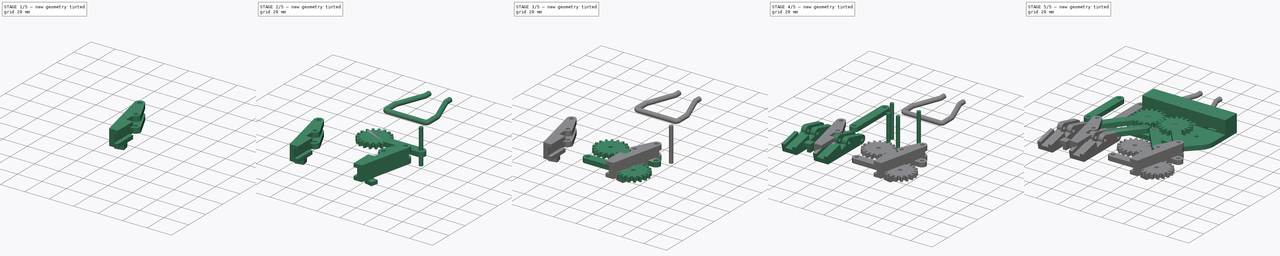
[diagram: build sequence overview — one tinted view per stage of 5, left to right]
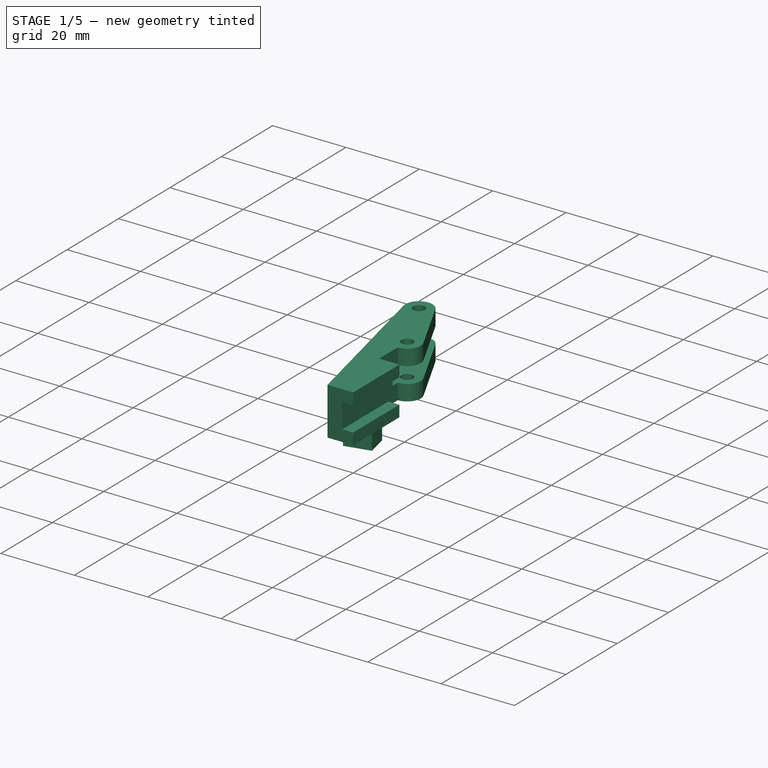
[diagram: stage 1 of 5 — iso view after this stage's code; geometry added in this stage tinted green]
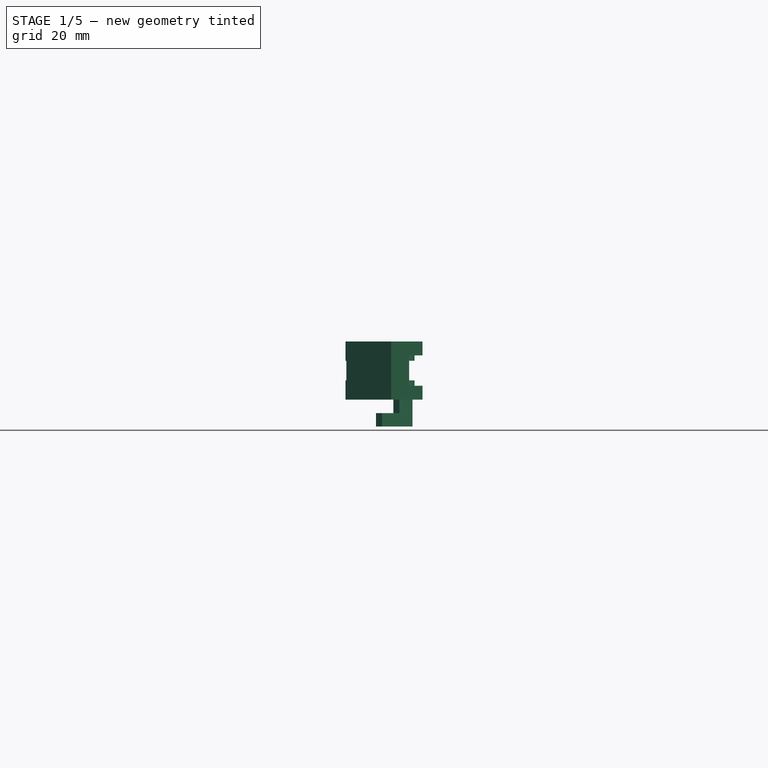
[diagram: stage 1 of 5 — front view after this stage's code; geometry added in this stage tinted green]
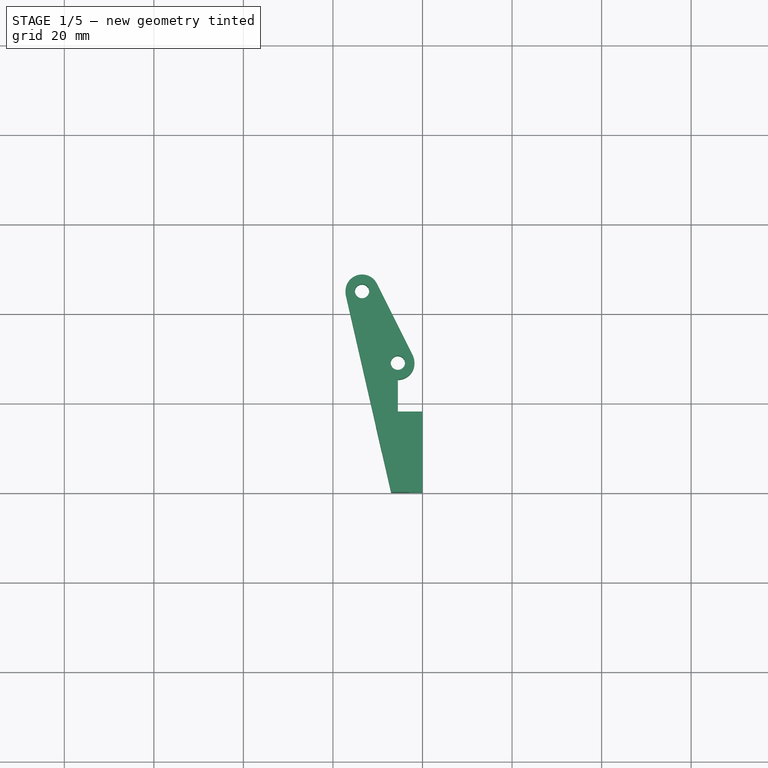
[diagram: stage 1 of 5 — top view after this stage's code; geometry added in this stage tinted green]
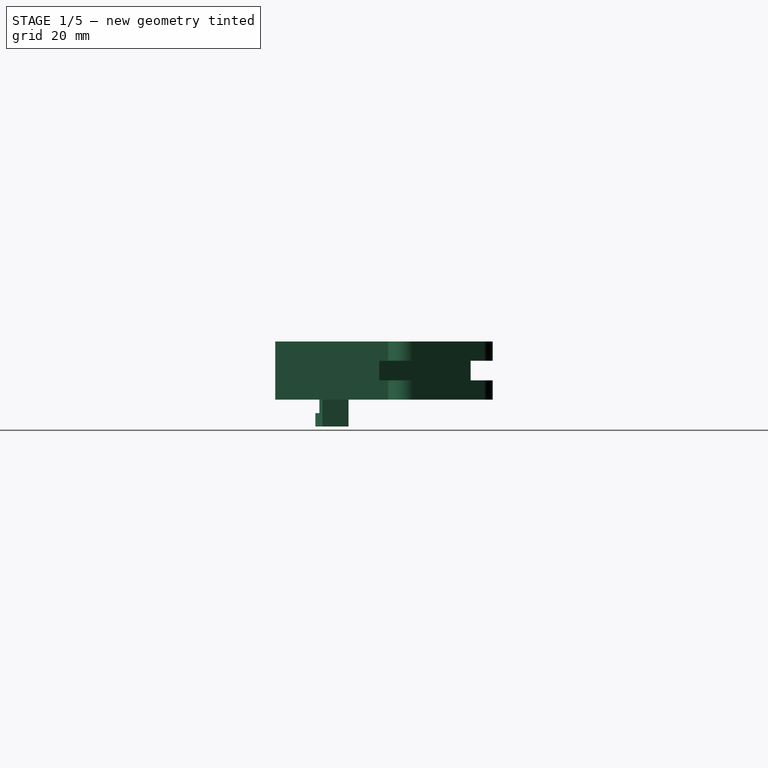
[diagram: stage 1 of 5 — right view after this stage's code; geometry added in this stage tinted green]
FCSTD DOCUMENT  (FreeCAD 0.16R6226 (Git))
Label: bq-id-card-holder-robot-claw-2
License: All rights reserved
LicenseURL: http://en.wikipedia.org/wiki/All_rights_reserved
objects: Part::Part2DObjectPython×39, Part::FeaturePython×32, Part::Feature×17, App::Annotation×15, Sketcher::SketchObject×12, App::DocumentObjectGroup×10, Part::MultiFuse×9, PartDesign::Pad×7, Part::Cut×5, PartDesign::Pocket×5, Part::Cylinder×2, Part::Extrusion×2, Part::Sweep×2, Part::Box×1
note: 145 computed .brp shape members not serialized (recipe doc carries the construction recipe); baked Part::Feature solids carry a one-line shape summary decoded from their .brp

FEATURE [Part::Cylinder] Cylinder  label="finger-drill-master"
  Angle = 360
  Height = 30
  Placement = pos=(0,0,-8) rot=(0,0,1;0rad)
  Radius = 1.6
FEATURE [Part::FeaturePython] Clone001  label="finger-claw-drill-1"  # Draft clone (typed FeaturePython)
  Objects = -> [Cylinder]
  Placement = pos=(-5.5,28.9,-8) rot=(0,0,1;0rad)
  Scale = (1,1,1)
FEATURE [Part::FeaturePython] Clone002  label="finger-claw-drill-2"  # Draft clone (typed FeaturePython)
  Objects = -> [Cylinder]
  Placement = pos=(-13.5,44.9,-8) rot=(0,0,1;0rad)
  Scale = (1,1,1)
FEATURE [Part::MultiFuse] Fusion  label="finger-drills"
  Shapes = -> [Clone002,Clone001]
FEATURE [Part::Feature] Pad006  label="bq-id-card002"
  Placement = pos=(0,-80.0588,2.75) rot=(0,0,1;0rad)
  shape: bbox 54.2 x 85.8 x 6.5 mm, 10 faces (baked)
FEATURE [Part::Box] Box  label="Cube"
  Height = 3
  Length = 5
  Width = 4
FEATURE [Sketcher::SketchObject] Sketch  label="finger-sketch"
  Placement = pos=(0,0,0) rot=(1,0,0;1.5708rad)
  Support = -> Box [Face3]
  sketch-geometry (9):
    g0: LineSegment StartX=0 StartY=0 StartZ=0 EndX=0 EndY=18 EndZ=0
    g1: LineSegment StartX=0 StartY=18 StartZ=0 EndX=-5.5 EndY=18 EndZ=0
    g2: LineSegment StartX=-5.5 StartY=18 StartZ=0 EndX=-5.5 EndY=25.2 EndZ=0
    g3: LineSegment StartX=-17.1064 StartY=44.073 StartZ=0 EndX=-7 EndY=0 EndZ=0
    g4: LineSegment StartX=-7 StartY=0 StartZ=0 EndX=0 EndY=0 EndZ=0
    g5: ArcOfCircle CenterX=-13.5 CenterY=44.9 CenterZ=0 NormalX=0 NormalY=0 NormalZ=1 Radius=3.7 StartAngle=0.463648 EndAngle=3.36701
    g6: ArcOfCircle CenterX=-5.5 CenterY=28.9 CenterZ=0 NormalX=0 NormalY=0 NormalZ=1 Radius=3.7 StartAngle=4.71239 EndAngle=6.74684
    g7: LineSegment StartX=-10.1906 StartY=46.5547 StartZ=0 EndX=-2.19063 EndY=30.5547 EndZ=0
    g8: Circle [constr] CenterX=-5.5 CenterY=28.9 CenterZ=0 NormalX=0 NormalY=0 NormalZ=1 Radius=3.7
  constraints (27):
    c: Vertical(g0)
    c: Coincident(g0,g1)
    c: Horizontal(g1)
    c: Coincident(g1,g2)
    c: Coincident(g3,g4)
    c: Coincident(g4,g0)
    c: Horizontal(g4)
    c: Coincident(g5,g3)
    c: Radius(g5) = 3.7
    c: Coincident(g6,g2)
    c: Coincident(g7,g5)
    c: Coincident(g7,g6)
    c: Equal(g6,g5)
    c: Tangent(g3,g5)
    c: Tangent(g7,g5)
    c: Tangent(g6,g7)
    c: Vertical(g2)
    c: DistanceY(g0) = 18
    c: DistanceX(g4) = 7
    c: DistanceX(g6,g5) = -8
    c: DistanceY(g6,g5) = 16
    c: PointOnObject(g6,g2)
    c: DistanceX(g1) = -5.5
    c: DistanceY(g2,g1) = -7.2
    c: Coincident(g0,g-1)
    c: Coincident(g8,g6)
    c: Equal(g6,g8)
FEATURE [PartDesign::Pad] Pad001  label="finger-body"
  Length = 13
  Length2 = 100
  Sketch = -> Sketch
  Type = 0
FEATURE [Sketcher::SketchObject] Sketch001
  Placement = pos=(10.4694,5.23469,0) rot=(0.400447,0.647936,0.647936;2.37981rad)
  Support = -> Pad001 [Face8]
  sketch-geometry (6):
    g0: LineSegment StartX=23.2529 StartY=8.7 StartZ=0 EndX=51.2529 EndY=8.7 EndZ=0
    g1: LineSegment StartX=51.2529 StartY=8.7 StartZ=0 EndX=51.2529 EndY=4.3 EndZ=0
    g2: LineSegment StartX=51.2529 StartY=4.3 StartZ=0 EndX=23.2529 EndY=4.3 EndZ=0
    g3: LineSegment StartX=23.2529 StartY=4.3 StartZ=0 EndX=23.2529 EndY=8.7 EndZ=0
    g4: LineSegment [constr] StartX=23.2529 StartY=6.5 StartZ=0 EndX=51.2529 EndY=6.5 EndZ=0
    g5: LineSegment [constr] StartX=37.2529 StartY=13 StartZ=0 EndX=37.2529 EndY=0 EndZ=0
FEATURE [PartDesign::Pocket] Pocket  label="finger"
  Length = 7.4
  Sketch = -> Sketch001
  Type = 0
FEATURE [Part::Cut] Cut  label="finger-final-src"
  Base = -> Pocket
  Tool = -> Fusion
FEATURE [Sketcher::SketchObject] Sketch006
  ExternalGeometry = -> [Cut]
  Placement = pos=(0,0,0) rot=(1,0,0;1.5708rad)
  Support = -> Cut [Face7]
  sketch-geometry (5):
    g0: LineSegment StartX=0 StartY=9.9 StartZ=0 EndX=-3 EndY=9.9 EndZ=0
    g1: LineSegment StartX=-3 StartY=9.9 StartZ=0 EndX=-3 EndY=3.1 EndZ=0
    g2: LineSegment StartX=-3 StartY=3.1 StartZ=0 EndX=0 EndY=3.1 EndZ=0
    g3: LineSegment StartX=0 StartY=3.1 StartZ=0 EndX=0 EndY=9.9 EndZ=0
    g4: LineSegment [constr] StartX=-7 StartY=6.5 StartZ=0 EndX=0 EndY=6.5 EndZ=0
  constraints (15):
    c: Coincident(g0,g1)
    c: Coincident(g1,g2)
    c: Coincident(g2,g3)
    c: Coincident(g3,g0)
    c: Horizontal(g0)
    c: Horizontal(g2)
    c: Vertical(g1)
    c: Vertical(g3)
    c: PointOnObject(g0,g-2)
    c: DistanceY(g3) = 6.8
    c: PointOnObject(g4,g-5)
    c: PointOnObject(g4,g3)
    c: Symmetric(g-5,g-5,g4)
    c: Symmetric(g0,g2,g4)
    c: DistanceX(g0) = -3
FEATURE [PartDesign::Pocket] Pocket001  label="left-finger-guide"
  Length = 20
  Sketch = -> Sketch006
  Type = 0
FEATURE [Part::FeaturePython] Clone025  label="Clone of left-finger-guide"  # Draft clone (typed FeaturePython)
  Objects = -> [Pocket001]
  Scale = (1,1,1)
FEATURE [Sketcher::SketchObject] Sketch013
  Placement = pos=(0,0,0) rot=(1,0,0;1.5708rad)
  sketch-geometry (6):
    g0: LineSegment StartX=0 StartY=0 StartZ=0 EndX=0 EndY=3 EndZ=0
    g1: LineSegment StartX=0 StartY=3 StartZ=0 EndX=4 EndY=3 EndZ=0
    g2: LineSegment StartX=4 StartY=3 StartZ=0 EndX=4 EndY=6 EndZ=0
    g3: LineSegment StartX=4 StartY=6 StartZ=0 EndX=7 EndY=6 EndZ=0
    g4: LineSegment StartX=7 StartY=6 StartZ=0 EndX=7 EndY=0 EndZ=0
    g5: LineSegment StartX=7 StartY=0 StartZ=0 EndX=0 EndY=0 EndZ=0
  constraints (17):
    c: Coincident(g-1,g0)
    c: PointOnObject(g0,g-2)
    c: Coincident(g0,g1)
    c: Horizontal(g1)
    c: Coincident(g1,g2)
    c: Vertical(g2)
    c: Coincident(g2,g3)
    c: Horizontal(g3)
    c: Coincident(g3,g4)
    c: Vertical(g4)
    c: Coincident(g4,g5)
    c: Coincident(g5,g0)
    c: Horizontal(g5)
    c: DistanceX(g5) = -7
    c: DistanceX(g1) = 4
    c: DistanceY(g4) = -6
    c: DistanceY(g0) = 3
FEATURE [PartDesign::Pad] Pad007  label="hook-2-src"
  Length = 6
  Length2 = 100
  Placement = pos=(0,0,0) rot=(1,0,0;1.5708rad)
  Sketch = -> Sketch013
  Type = 0
FEATURE [Part::FeaturePython] Clone031  label="left-hook-2"  # Draft clone (typed FeaturePython)
  Objects = -> [Pad007]
  Placement = pos=(-10.3971,14.8142,-6) rot=(0.98743,0.111764,0.111764;1.58345rad)
  Scale = (1,1,1)
FEATURE [Part::MultiFuse] Fusion010  label="left-finger-master"
  Shapes = -> [Clone025,Clone031]
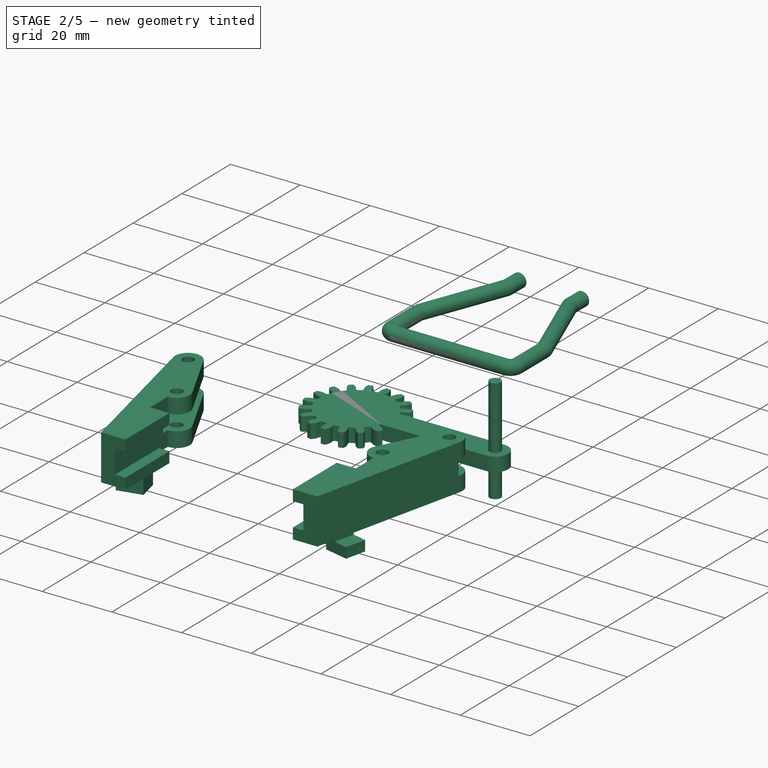
[diagram: stage 2 of 5 — iso view after this stage's code; geometry added in this stage tinted green]
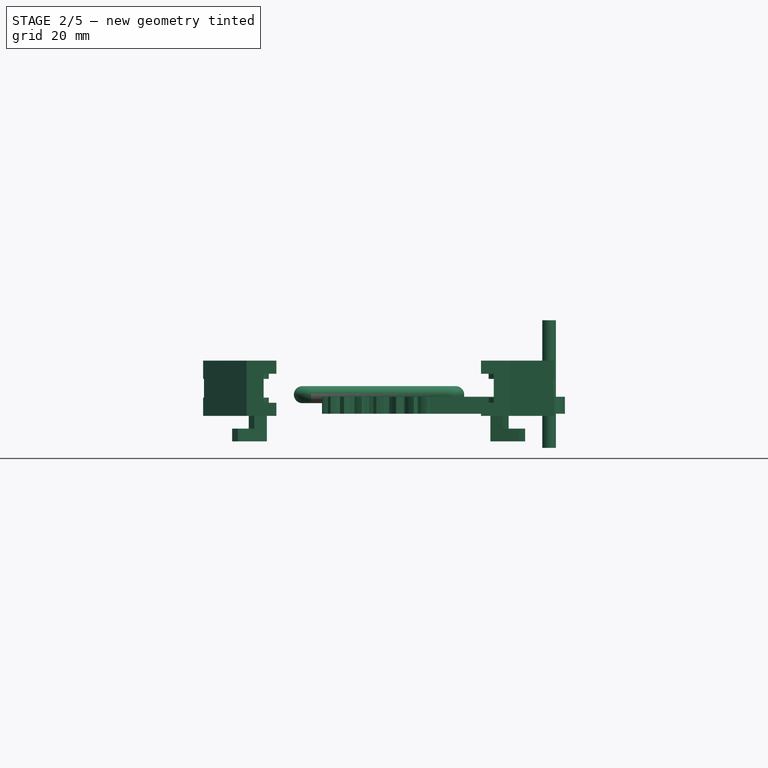
[diagram: stage 2 of 5 — front view after this stage's code; geometry added in this stage tinted green]
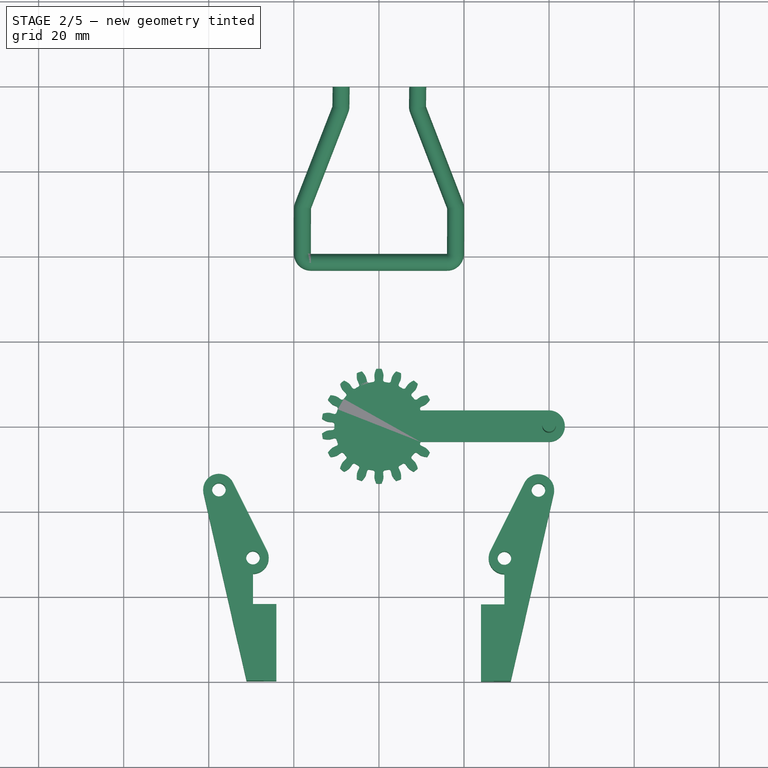
[diagram: stage 2 of 5 — top view after this stage's code; geometry added in this stage tinted green]
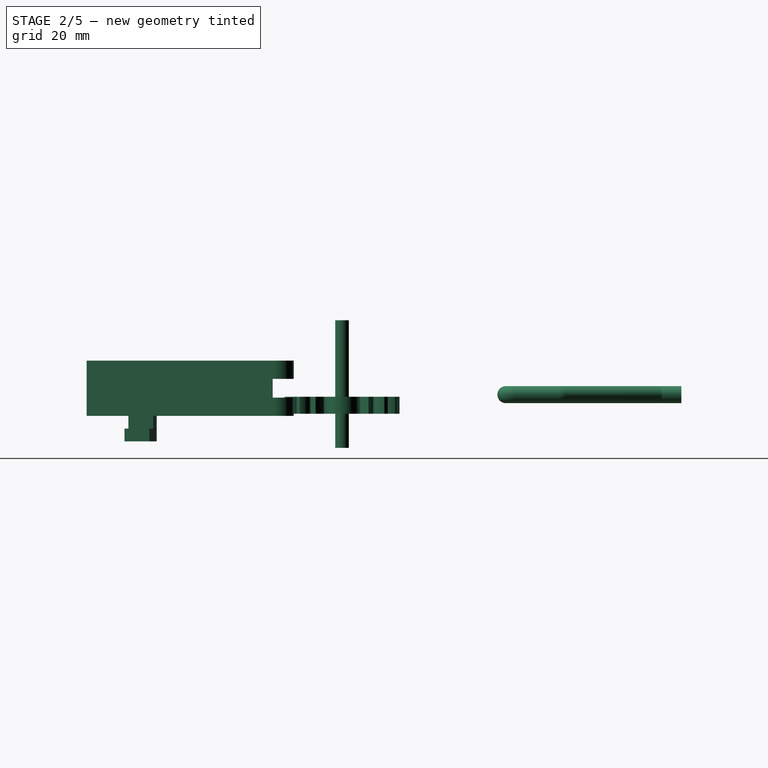
[diagram: stage 2 of 5 — right view after this stage's code; geometry added in this stage tinted green]
FEATURE [Part::Cylinder] Cylinder001  label="finger-drill-master001"
  Angle = 360
  Height = 30
  Placement = pos=(0,0,-8) rot=(0,0,1;0rad)
  Radius = 1.6
FEATURE [Part::Part2DObjectPython] InvoluteGear001  # Draft 2D object (typed FeaturePython)
  ExternalGear = true
  HighPrecision = true
  Modules = 1.35
  NumberOfTeeth = 18
  Placement = pos=(0,0,0) rot=(0,0,-1;0.174533rad)
  PressureAngle = 12
FEATURE [Sketcher::SketchObject] Sketch004  label="link-body-sketch002"
  sketch-geometry (4):
    g0: ArcOfCircle CenterX=0 CenterY=0 CenterZ=0 NormalX=0 NormalY=0 NormalZ=1 Radius=3.7 StartAngle=1.5708 EndAngle=4.71239
    g1: ArcOfCircle CenterX=40 CenterY=0 CenterZ=0 NormalX=0 NormalY=0 NormalZ=1 Radius=3.7 StartAngle=4.71239 EndAngle=7.85398
    g2: LineSegment StartX=0 StartY=-3.7 StartZ=0 EndX=40 EndY=-3.7 EndZ=0
    g3: LineSegment StartX=0 StartY=3.7 StartZ=0 EndX=40 EndY=3.7 EndZ=0
  constraints (9):
    c: Tangent(g0,g3) = 1.5708
    c: Tangent(g0,g2) = -1.5708
    c: Tangent(g2,g1) = -1.5708
    c: Tangent(g3,g1) = 1.5708
    c: Horizontal(g2)
    c: Equal(g0,g1)
    c: Coincident(g0,g-1)
    c: Radius(g0) = 3.7
    c: DistanceX(g2) = 40
FEATURE [PartDesign::Pad] Pad004  label="link-body002"
  Length = 4
  Length2 = 100
  Sketch = -> Sketch004
  Type = 0
FEATURE [Part::FeaturePython] Clone014  label="gear-drill-004"  # Draft clone (typed FeaturePython)
  Objects = -> [Cylinder001]
  Placement = pos=(40,0,-8) rot=(0,0,1;0rad)
  Scale = (1,1,1)
FEATURE [Part::Extrusion] Extrude001
  Base = -> InvoluteGear001
  Dir = (0,0,4)
  Solid = true
FEATURE [Part::MultiFuse] Fusion006
  Shapes = -> [Pad004,Extrude001]
FEATURE [Part::FeaturePython] Clone024  label="right-finger-guide"  # Draft clone (typed FeaturePython)
  Objects = -> [Pocket001]
  Placement = pos=(-7.25228,0,13) rot=(0,1,0;3.14159rad)
  Scale = (1,1,1)
FEATURE [Part::FeaturePython] Clone032  label="Clone of left-hook-2"  # Draft clone (typed FeaturePython)
  Objects = -> [Clone031]
  Placement = pos=(1.79059,8.90875,-6) rot=(0.07978,0.704853,0.704853;2.98237rad)
  Scale = (1,1,1)
FEATURE [Part::MultiFuse] Fusion011  label="right-finger-master"
  Shapes = -> [Clone032,Clone024]
FEATURE [Part::Part2DObjectPython] Line  # Draft 2D object (typed FeaturePython)
  ChamferSize = 0
  Closed = false
  End = (-16,38.5,0)
  FilletRadius = 0
  Length = 4
  MakeFace = true
  Points = (2) [(-20,38.5,-6.16298e-33),(-16,38.5,-6.16298e-33)]
  Start = (-20,38.5,0)
FEATURE [Part::Part2DObjectPython] Line001  # Draft 2D object (typed FeaturePython)
  ChamferSize = 0
  Closed = false
  End = (0,31,0)
  FilletRadius = 0
  Length = 4
  MakeFace = true
  Points = (2) [(-8.88178e-16,35,-6.16298e-33),(0,31,-6.16298e-33)]
  Start = (0,35,0)
FEATURE [Part::Part2DObjectPython] Line002  # Draft 2D object (typed FeaturePython)
  ChamferSize = 0
  Closed = false
  End = (-18,31,0)
  FilletRadius = 0
  Length = 7.5
  MakeFace = true
  Points = (2) [(-18,38.5,-6.16298e-33),(-18,31,-6.16298e-33)]
  Start = (-18,38.5,0)
FEATURE [Part::Part2DObjectPython] Line003  # Draft 2D object (typed FeaturePython)
  ChamferSize = 0
  Closed = false
  End = (-20,33,0)
  FilletRadius = 0
  Length = 20
  MakeFace = true
  Points = (2) [(-8.88178e-16,33,-6.16298e-33),(-20,33,-6.16298e-33)]
  Start = (0,33,0)
FEATURE [Part::Part2DObjectPython] Line004  # Draft 2D object (typed FeaturePython)
  ChamferSize = 0
  Closed = false
  End = (20,35,0)
  FilletRadius = 0
  Length = 4
  MakeFace = true
  Points = (2) [(16,35,-6.16298e-33),(20,35,-6.16298e-33)]
  Start = (16,35,0)
FEATURE [Part::Part2DObjectPython] Line005  # Draft 2D object (typed FeaturePython)
  ChamferSize = 0
  Closed = false
  End = (18,31,0)
  FilletRadius = 0
  Length = 4
  MakeFace = true
  Points = (2) [(18,35,-6.16298e-33),(18,31,-6.16298e-33)]
  Start = (18,35,0)
FEATURE [Part::Part2DObjectPython] Line006  # Draft 2D object (typed FeaturePython)
  ChamferSize = 0
  Closed = false
  End = (18,33,0)
  FilletRadius = 0
  Length = 18
  MakeFace = true
  Points = (2) [(-8.88178e-16,33,-6.16298e-33),(18,33,-6.16298e-33)]
  Start = (0,33,0)
FEATURE [Part::Part2DObjectPython] Line008  # Draft 2D object (typed FeaturePython)
  ChamferSize = 0
  Closed = false
  End = (0,69.2543,0)
  FilletRadius = 0
  Length = 34.2543
  MakeFace = true
  Points = (2) [(-8.88178e-16,35,-6.16298e-33),(-2.66454e-15,69.2543,-6.16298e-33)]
  Start = (0,35,0)
FEATURE [Part::Part2DObjectPython] Line009  # Draft 2D object (typed FeaturePython)
  ChamferSize = 0
  Closed = false
  End = (-17.8796,69.2543,0)
  FilletRadius = 0
  Length = 30.7546
  MakeFace = true
  Points = (2) [(-18,38.5,-6.16298e-33),(-17.8796,69.2543,-6.16298e-33)]
  Start = (-18,38.5,0)
FEATURE [Part::Part2DObjectPython] Line010  # Draft 2D object (typed FeaturePython)
  ChamferSize = 0
  Closed = false
  End = (18.1204,69.2543,0)
  FilletRadius = 0
  Length = 34.2546
  MakeFace = true
  Points = (2) [(18,35,-6.16298e-33),(18.1204,69.2543,-6.16298e-33)]
  Start = (18,35,0)
FEATURE [Part::Part2DObjectPython] Line011  # Draft 2D object (typed FeaturePython)
  ChamferSize = 0
  Closed = false
  End = (0,69.2543,0)
  FilletRadius = 0
  Length = 17.8796
  MakeFace = true
  Points = (2) [(-17.8796,69.2543,-6.16298e-33),(-5.32907e-15,69.2543,-6.16298e-33)]
  Start = (-17.8796,69.2543,0)
FEATURE [Part::Part2DObjectPython] Line012  # Draft 2D object (typed FeaturePython)
  ChamferSize = 0
  Closed = false
  End = (18.1204,69.2543,0)
  FilletRadius = 0
  Length = 18.1204
  MakeFace = true
  Points = (2) [(-5.32907e-15,69.2543,-6.16298e-33),(18.1204,69.2543,-6.16298e-33)]
  Start = (0,69.2543,0)
FEATURE [Part::Part2DObjectPython] Line013  # Draft 2D object (typed FeaturePython)
  ChamferSize = 0
  Closed = false
  End = (-20,46,0)
  FilletRadius = 0
  Length = 4
  MakeFace = true
  Points = (2) [(-16,46,-6.16298e-33),(-20,46,-6.16298e-33)]
  Start = (-16,46,0)
FEATURE [Part::Part2DObjectPython] Line014  # Draft 2D object (typed FeaturePython)
  ChamferSize = 0
  Closed = false
  End = (20,46,0)
  FilletRadius = 0
  Length = 4
  MakeFace = true
  Points = (2) [(16,46,-6.16298e-33),(20,46,-6.16298e-33)]
  Start = (16,46,0)
FEATURE [Part::Part2DObjectPython] DWire001  # Draft 2D object (typed FeaturePython)
  ChamferSize = 0
  Closed = false
  End = (9.12035,74.2543,0)
  FilletRadius = 2
  Length = 120.125
  MakeFace = true
  Points = (8) [(-8.87965,74.2543,-6.16298e-33),(-8.93982,69.2543,-6.16298e-33),(-17.9706,46,-6.16298e-33),(-18,33,-6.16298e-33),(18,33,-6.16298e-33),+3 more]
  Start = (-8.87965,74.2543,0)
FEATURE [Part::Part2DObjectPython] Circle001  # Draft 2D object (typed FeaturePython)
  FirstAngle = 0
  LastAngle = 0
  MakeFace = true
  Placement = pos=(-8.87965,74.2543,0) rot=(1,0,0;1.5708rad)
  Radius = 2
FEATURE [Part::Sweep] Sweep001
  Frenet = false
  Placement = pos=(0,0,2) rot=(0,0,1;0rad)
  Sections = -> [Circle001]
  Solid = true
  Spine = -> DWire001
  Transition = 1
FEATURE [App::DocumentObjectGroup] Group007  label="rope"
  Group = -> [Line,Line001,Line002,Line003,Line004,Line005,Line006,Line008,Line009,Line010,Line011,Line012,Line013,Line014,DWire001,Sweep001]
FEATURE [Part::FeaturePython] Clone  label="Clone of rope"  # Draft clone (typed FeaturePython)
  Objects = -> [Sweep001]
  Placement = pos=(0,5.5,4.5) rot=(0,0,1;0rad)
  Scale = (1,1,1)
FEATURE [Part::Feature] Chamfer  label="bolt-M3x16-002"
  Placement = pos=(-29.6105,-31.0563,12.4) rot=(0,0,1;0rad)
  shape: bbox 5.5 x 5.5 x 19 mm, 16 faces (baked)
FEATURE [Part::Feature] Chamfer001  label="bolt-M3x16-003"
  Placement = pos=(-37.6105,-15.0563,12.4) rot=(0,0,1;0rad)
  shape: bbox 5.5 x 5.5 x 19 mm, 16 faces (baked)
FEATURE [Part::Feature] Chamfer002  label="bolt-M3x16-004"
  Placement = pos=(29.4922,-31.1518,12.4) rot=(0,0,1;0rad)
  shape: bbox 5.5 x 5.5 x 19 mm, 16 faces (baked)
FEATURE [Part::Feature] Chamfer003  label="bolt-M3x16-005"
  Placement = pos=(37.4922,-15.1518,12.4) rot=(0,0,1;0rad)
  shape: bbox 5.5 x 5.5 x 19 mm, 16 faces (baked)
FEATURE [Part::Feature] Chamfer004  label="Bolt-M3x12-002"
  Placement = pos=(-12.4012,16,8.6) rot=(0,0,1;0rad)
  shape: bbox 5.5 x 5.5 x 15 mm, 16 faces (baked)
FEATURE [Part::Feature] Chamfer005  label="Bolt-M3x12-003"
  Placement = pos=(-4.40118,-8.7e-11,8.3) rot=(0,0,1;0rad)
  shape: bbox 5.5 x 5.5 x 15 mm, 16 faces (baked)
FEATURE [Part::Feature] Chamfer006  label="Bolt-M3x12-004"
  Placement = pos=(4.39423,-0.00691623,8.2) rot=(0,0,1;0rad)
  shape: bbox 5.5 x 5.5 x 15 mm, 16 faces (baked)
FEATURE [Part::Feature] Chamfer008  label="Bolt-M3x12-006"
  Placement = pos=(12.4011,16,8.6) rot=(0,0,1;0rad)
  shape: bbox 5.5 x 5.5 x 15 mm, 16 faces (baked)
FEATURE [Part::Feature] Compound  label="Nyloc-nut-M005"
  Placement = pos=(29.4922,-31.1518,-0.420125) rot=(0.369013,0.929424,0;3.14159rad)
  shape: bbox 6.35 x 6.35 x 3.86 mm, 36 faces, 2 solids (baked)
FEATURE [Part::Feature] Compound001  label="Nyloc-nut-M006"
  Placement = pos=(37.4922,-15.1518,-0.420125) rot=(0.369013,0.929424,0;3.14159rad)
  shape: bbox 6.35 x 6.35 x 3.86 mm, 36 faces, 2 solids (baked)
FEATURE [Part::Feature] Compound002  label="Nyloc-nut-M007"
  Placement = pos=(-29.6105,-31.0563,-0.420125) rot=(0.369013,0.929424,0;3.14159rad)
  shape: bbox 6.35 x 6.35 x 3.86 mm, 36 faces, 2 solids (baked)
FEATURE [Part::Feature] Compound003  label="Nyloc-nut-M008"
  Placement = pos=(-37.6105,-15.0563,-0.420125) rot=(0.369013,0.929424,0;3.14159rad)
  shape: bbox 6.35 x 6.35 x 3.86 mm, 36 faces, 2 solids (baked)
FEATURE [Part::Feature] Compound004  label="Nyloc-nut-M009"
  Placement = pos=(12.4011,16,0) rot=(0.369013,0.929424,0;3.14159rad)
  shape: bbox 6.35 x 6.35 x 3.86 mm, 36 faces, 2 solids (baked)
FEATURE [Part::Feature] Compound005  label="Nyloc-nut-M010"
  Placement = pos=(4.40118,-5.3e-11,0) rot=(0.369013,0.929424,0;3.14159rad)
  shape: bbox 6.35 x 6.35 x 3.86 mm, 36 faces, 2 solids (baked)
FEATURE [Part::Feature] Compound006  label="Nyloc-nut-M011"
  Placement = pos=(-4.40118,-8.7e-11,0) rot=(0.369013,0.929424,0;3.14159rad)
  shape: bbox 6.35 x 6.35 x 3.86 mm, 36 faces, 2 solids (baked)
FEATURE [Part::Feature] Compound007  label="Nyloc-nut-M012"
  Placement = pos=(-12.4012,16,0) rot=(0.369013,0.929424,0;3.14159rad)
  shape: bbox 6.35 x 6.35 x 3.86 mm, 36 faces, 2 solids (baked)
FEATURE [Part::FeaturePython] Clone038  label="Clone of left-finger-master"  # Draft clone (typed FeaturePython)
  Objects = -> [Fusion010]
  Placement = pos=(-24.1105,-59.9563,-0.5) rot=(0,0,1;0rad)
  Scale = (1,1,1)
FEATURE [Part::FeaturePython] Clone039  label="Clone of right-finger-master"  # Draft clone (typed FeaturePython)
  Objects = -> [Fusion011]
  Placement = pos=(31.2445,-60.0518,-0.5) rot=(0,0,1;0rad)
  Scale = (1,1,1)
FEATURE [Part::Part2DObjectPython] Rectangle  # Draft 2D object (typed FeaturePython)
  ChamferSize = 0
  FilletRadius = 0
  Height = 1
  Length = 1
  MakeFace = true
  Placement = pos=(-0.0842743,-51.0735,-1) rot=(0.57735,0.57735,0.57735;2.0944rad)
FEATURE [Part::Part2DObjectPython] DWire  # Draft 2D object (typed FeaturePython)
  ChamferSize = 0
  Closed = true
  End = (-31.2001,-43.8115,-0.5)
  FilletRadius = 0.5
  Length = 134.447
  MakeFace = false
  Points = (6) [(-29.6152,-50.5735,-0.5),(29.4467,-50.5735,-0.5),(31.0482,-44.0288,-0.5),(27.6505,-43.2304,-0.5),(-28.2417,-43.2304,-0.5),(-31.2001,-43.8115,-0.5)]
  Start = (-29.6152,-50.5735,-0.5)
  Support = -> Clone038
FEATURE [Part::Sweep] Sweep
  Frenet = false
  Placement = pos=(0,0,-2) rot=(0,0,1;0rad)
  Sections = -> [Rectangle]
  Solid = true
  Spine = -> DWire
  Transition = 1
FEATURE [App::DocumentObjectGroup] Group008  label="rubber-src"
  Group = -> [DWire,Sweep]
FEATURE [App::DocumentObjectGroup] Group006  label="src"
  Group = -> [Group,Group002,Group003,Group004,Group007,Group008]
FEATURE [Part::FeaturePython] Clone040  label="Clone of rubber"  # Draft clone (typed FeaturePython)
  Objects = -> [Sweep]
  Placement = pos=(0,0,-2) rot=(0,0,1;0rad)
  Scale = (1,1,1)
FEATURE [App::Annotation] Text
  LabelText = Printing plate
  Position = (-49,76,0)
FEATURE [Part::Part2DObjectPython] Rectangle001  # Draft 2D object (typed FeaturePython)
  ChamferSize = 0
  FilletRadius = 0
  Height = -163
  Length = 137
  MakeFace = false
  Placement = pos=(-72,92,0) rot=(0,0,1;0rad)
FEATURE [App::DocumentObjectGroup] Group001  label="printing"
  Group = -> [Clone008,Clone029,Clone033,Clone034,Clone035,Clone036,Clone037,Text,Rectangle001]
FEATURE [App::Annotation] Text001
  LabelText = Left finger
  Position = (-82.0693,-24.9828,8.7)
FEATURE [Part::Part2DObjectPython] DWire002  # Draft 2D object (typed FeaturePython)
  ChamferSize = 0
  Closed = false
  End = (-84.0693,-26.9828,8.7)
  FilletRadius = 0
  Length = 50.9816
  MakeFace = true
  Points = (3) [(-36.1637,-37.9198,8.7),(-54.0693,-26.9828,8.7),(-84.0693,-26.9828,8.7)]
  Start = (-36.1637,-37.9198,8.7)
FEATURE [App::Annotation] Text002
  LabelText = Left geared link
  Position = (-76.0693,13.0172,8.7)
FEATURE [Part::Part2DObjectPython] DWire003  # Draft 2D object (typed FeaturePython)
  ChamferSize = 0
  Closed = false
  End = (-31.8279,-2.06164,8.7)
  FilletRadius = 0
  Length = 52.0144
  MakeFace = true
  Points = (3) [(-77.0693,11.0172,8.7),(-41.0693,11.0172,8.7),(-31.8279,-2.06164,8.7)]
  Start = (-77.0693,11.0172,8.7)
FEATURE [App::Annotation] Text003
  LabelText = Links
  Position = (-6.06935,-27.9828,8.7)
FEATURE [Part::Part2DObjectPython] Line015  # Draft 2D object (typed FeaturePython)
  ChamferSize = 0
  Closed = false
  End = (-8.06935,-22.9828,8.7)
  FilletRadius = 0
  Length = 7.93806
  MakeFace = true
  Points = (2) [(-14.1331,-17.86,8.7),(-8.06935,-22.9828,8.7)]
  Start = (-14.1331,-17.86,8.7)
FEATURE [Part::Part2DObjectPython] Line016  # Draft 2D object (typed FeaturePython)
  ChamferSize = 0
  Closed = false
  End = (6.93065,-23.9828,8.7)
  FilletRadius = 0
  Length = 9.37273
  MakeFace = true
  Points = (2) [(14.0619,-17.9006,8.7),(6.93065,-23.9828,8.7)]
  Start = (14.0619,-17.9006,8.7)
FEATURE [App::Annotation] Text004
  LabelText = Right geared link
  Position = (43.9307,13.0172,8.7)
FEATURE [Part::Part2DObjectPython] DWire004  # Draft 2D object (typed FeaturePython)
  ChamferSize = 0
  Closed = false
  End = (84.9307,10.0172,8.7)
  FilletRadius = 0
  Length = 58.6384
  MakeFace = true
  Points = (3) [(30.8976,-1.06582,8.7),(41.9307,10.0172,8.7),(84.9307,10.0172,8.7)]
  Start = (30.8976,-1.06582,8.7)
FEATURE [Part::Part2DObjectPython] DWire005  # Draft 2D object (typed FeaturePython)
  ChamferSize = 0
  Closed = false
  End = (75.9307,-26.9828,8.7)
  FilletRadius = 0
  Length = 44.2165
  MakeFace = true
  Points = (3) [(36.0454,-38.0153,8.7),(47.9307,-26.9828,8.7),(75.9307,-26.9828,8.7)]
  Start = (36.0454,-38.0153,8.7)
FEATURE [App::Annotation] Text005
  LabelText = Right finger
  Position = (47.9307,-24.9828,8.7)
FEATURE [App::Annotation] Text006
  LabelText = Claw body
  Position = (-72,49.7849,4)
FEATURE [Part::Part2DObjectPython] DWire006  # Draft 2D object (typed FeaturePython)
  ChamferSize = 0
  Closed = false
  End = (-73,47.7849,4)
  FilletRadius = 0
  Length = 47.4672
  MakeFace = true
  Points = (3) [(-28.4,38.5,4),(-42,47.7849,4),(-73,47.7849,4)]
  Start = (-28.4,38.5,4)
FEATURE [App::Annotation] Text007
  LabelText = Rope
  Position = (-61,71.7849,4)
FEATURE [Part::Part2DObjectPython] DWire007  # Draft 2D object (typed FeaturePython)
  ChamferSize = 0
  Closed = false
  End = (-61,69.7849,4)
  FilletRadius = 0
  Length = 45.6155
  MakeFace = true
  Points = (3) [(-20,56.7849,4),(-36,69.7849,4),(-61,69.7849,4)]
  Start = (-20,56.7849,4)
FEATURE [App::Annotation] Text008
  LabelText = bq id card
  Position = (-77,-68.0588,9.25)
FEATURE [Part::Part2DObjectPython] DWire008  # Draft 2D object (typed FeaturePython)
  ChamferSize = 0
  Closed = false
  End = (-77,-70.0588,9.25)
  FilletRadius = 0
  Length = 52.1692
  MakeFace = true
  Points = (3) [(-27.1,-80.0588,9.25),(-48,-70.0588,9.25),(-77,-70.0588,9.25)]
  Start = (-27.1,-80.0588,9.25)
FEATURE [Part::Part2DObjectPython] DWire009  # Draft 2D object (typed FeaturePython)
  ChamferSize = 0
  Closed = false
  End = (70.583,-48.4678,-3.49989)
  FilletRadius = 0
  Length = 40.0281
  MakeFace = true
  Points = (3) [(31.0857,-50.6961,-3.50001),(40.0009,-47.6106,-3.49998),(70.583,-48.4678,-3.49989)]
  Start = (31.0857,-50.6961,-3.50001)
  Support = -> Clone039
FEATURE [App::Annotation] Text009
  LabelText = Hook
  Position = (54.5407,-46.841,-3.49994)
FEATURE [Part::Part2DObjectPython] DWire010  # Draft 2D object (typed FeaturePython)
  ChamferSize = 0
  Closed = false
  End = (58.9177,-78.5735,-2)
  FilletRadius = 0
  Length = 67.9068
  MakeFace = true
  Points = (3) [(-0.0822914,-51.0735,-2),(37.9177,-78.5735,-2),(58.9177,-78.5735,-2)]
  Start = (-0.0822914,-51.0735,-2)
  Support = -> Clone040
FEATURE [App::Annotation] Text010
  LabelText = Rubber band
  Position = (42.9177,-77.5735,-2)
FEATURE [Part::Part2DObjectPython] DWire011  # Draft 2D object (typed FeaturePython)
  ChamferSize = 0
  Closed = true
  End = (-45.9382,-12.0655,12.5)
  FilletRadius = 3
  Length = 205.599
  MakeFace = false
  Points = (4) [(-38.9382,-34.0655,12.5),(38.0618,-34.0655,12.5),(43.0618,-12.0655,12.5),(-45.9382,-12.0655,12.5)]
  Start = (-38.9382,-34.0655,12.5)
FEATURE [App::Annotation] Text011
  LabelText = M3x16mm bolts
  Position = (-102.938,-9.06552,12.5)
FEATURE [Part::Part2DObjectPython] DWire012  # Draft 2D object (typed FeaturePython)
  ChamferSize = 0
  Closed = false
  End = (-99.9382,-11.0655,12.5)
  FilletRadius = 0
  Length = 62.8893
  MakeFace = true
  Points = (3) [(-42.1488,-23.9751,12.5),(-55.9382,-11.0655,12.5),(-99.9382,-11.0655,12.5)]
  Start = (-42.1488,-23.9751,12.5)
FEATURE [Part::Part2DObjectPython] DWire013  # Draft 2D object (typed FeaturePython)
  ChamferSize = 0
  Closed = true
  End = (-11.0693,-5.98283,8.7)
  FilletRadius = 3
  Length = 145.567
  MakeFace = false
  Points = (4) [(-31.0693,23.0172,8.7),(32.9307,23.0172,8.7),(8.93065,-5.98283,8.7),(-11.0693,-5.98283,8.7)]
  Start = (-31.0693,23.0172,8.7)
FEATURE [App::Annotation] Text012
  LabelText = M3x12mm bolts
  Position = (46.9307,36.0172,8.7)
FEATURE [Part::Part2DObjectPython] DWire014  # Draft 2D object (typed FeaturePython)
  ChamferSize = 0
  Closed = false
  End = (12.4011,16,8.7)
  FilletRadius = 0
  Length = 75.1859
  MakeFace = true
  Points = (3) [(82.9307,34.0172,8.7),(44.9307,34.0172,8.7),(12.4011,16,8.7)]
  Start = (82.9307,34.0172,8.7)
FEATURE [App::DocumentObjectGroup] Group009  label="doc"
  Group = -> [Text001,DWire002,Text002,DWire003,Text003,Line015,Line016,Text004,DWire004,DWire005,Text005,Text006,DWire006,Text007,DWire007,Text008,DWire008,DWire009,Text009,DWire010,Text010,DWire011,Text011,DWire012,DWire013,Text012,DWire014]
FEATURE [App::Annotation] Text013
  LabelText = M3 Nyloc nuts
  Position = (52.2716,-2.05297,-0.5)
FEATURE [Part::Part2DObjectPython] DWire015  # Draft 2D object (typed FeaturePython)
  ChamferSize = 0
  Closed = true
  End = (-42.18,-9.16109,-0.5)
  FilletRadius = 3
  Length = 240.979
  MakeFace = false
  Points = (6) [(-39.18,-35.1611,-0.5),(33.8229,-34.5139,-0.5),(44.82,-14.1611,-0.5),(16.1703,22.7148,-0.5),(-17.4266,23.1418,-0.5),(-42.18,-9.16109,-0.5)]
  Start = (-39.18,-35.1611,-0.5)
FEATURE [Part::Part2DObjectPython] DWire016  # Draft 2D object (typed FeaturePython)
  ChamferSize = 0
  Closed = false
  End = (43.6195,-12.6159,-0.5)
  FilletRadius = 0
  Length = 44.0333
  MakeFace = true
  Points = (3) [(84.82,-4.16109,-0.5),(54.82,-4.16109,-0.5),(43.6195,-12.6159,-0.5)]
  Start = (84.82,-4.16109,-0.5)
FEATURE [Part::Part2DObjectPython] Rectangle002  # Draft 2D object (typed FeaturePython)
  ChamferSize = 0
  FilletRadius = 0
  Height = 245
  Length = 223
  MakeFace = false
  Placement = pos=(-115.18,109.839,-0.5) rot=(1,0,0;3.14159rad)
FEATURE [App::Annotation] Text014
  LabelText = ASSEMBLY AND DOC
  Position = (-106.18,94.8389,-0.5)
FEATURE [App::DocumentObjectGroup] Group005  label="assembly"
  Group = -> [Pad006,Clone017,Clone015,Clone012,Clone007,Clone030,Clone,Chamfer,Chamfer001,Chamfer002,Chamfer003,Chamfer004,Chamfer005,Chamfer006,Chamfer008,Compound,Compound001,Compound002,Compound003,Compound004,Compound005,Compound006,Compound007,Clone038,Clone039,Clone040,Group009,Text013,DWire015,DWire016,Rectangle002,Text014]
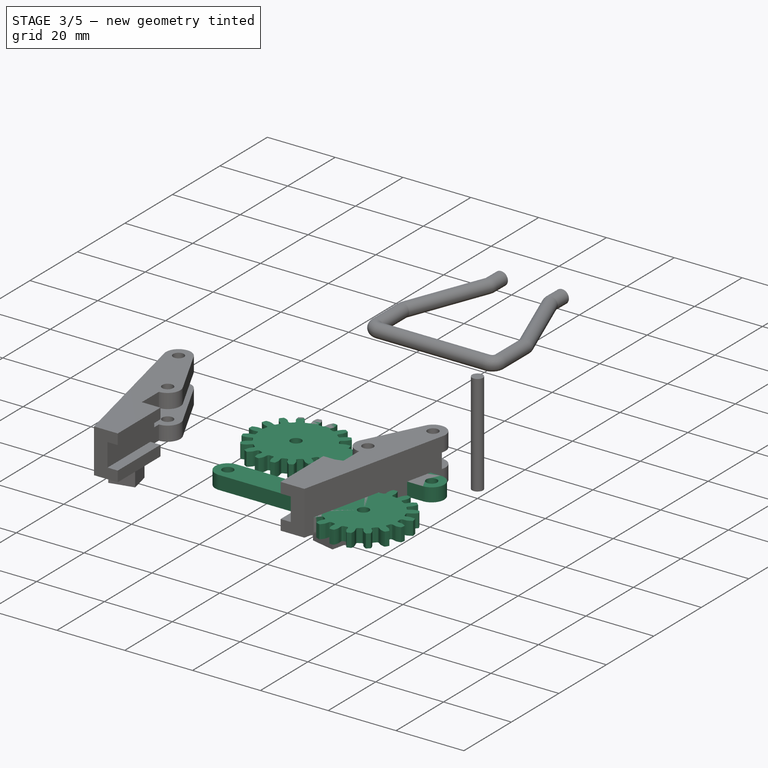
[diagram: stage 3 of 5 — iso view after this stage's code; geometry added in this stage tinted green]
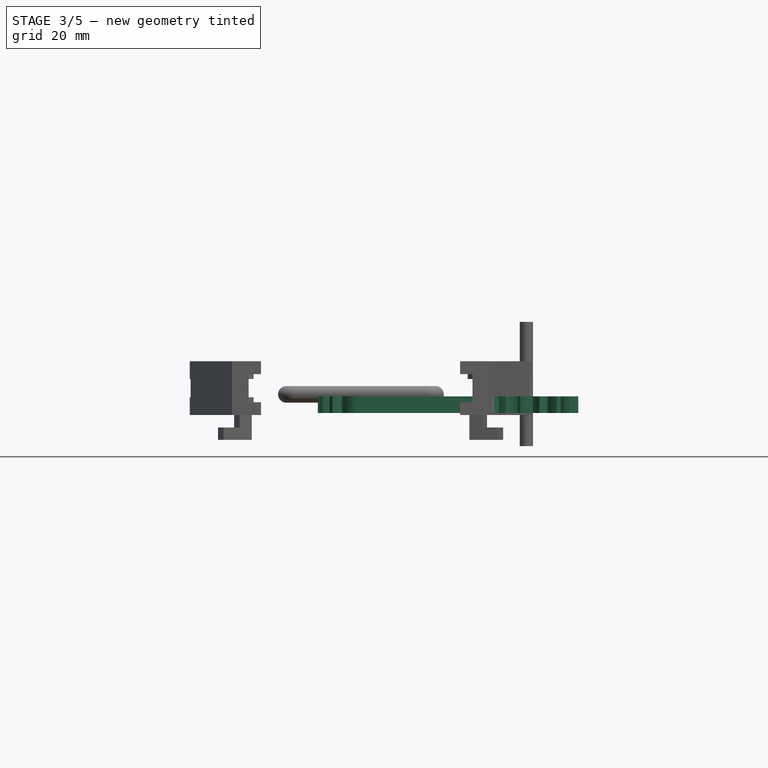
[diagram: stage 3 of 5 — front view after this stage's code; geometry added in this stage tinted green]
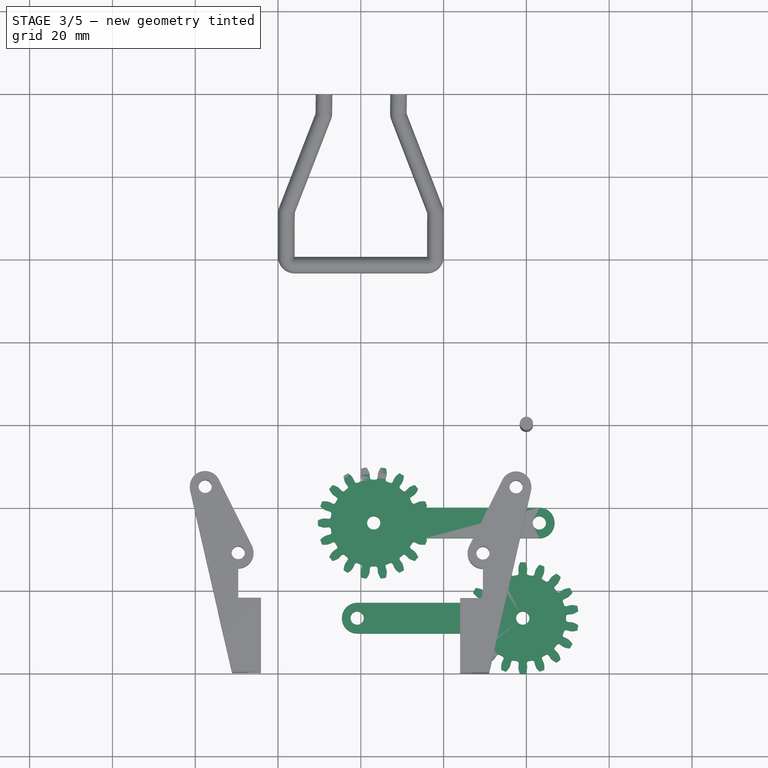
[diagram: stage 3 of 5 — top view after this stage's code; geometry added in this stage tinted green]
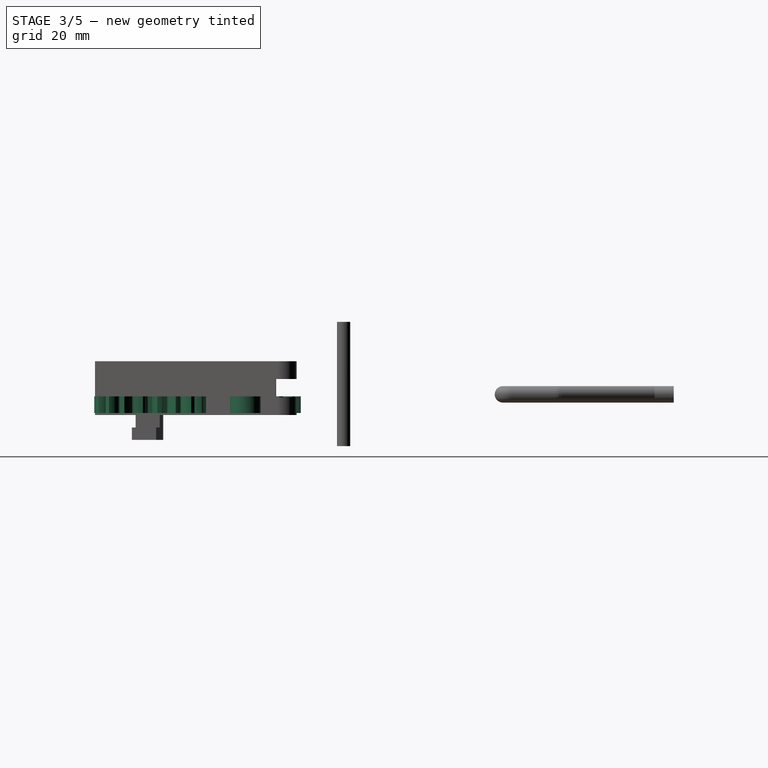
[diagram: stage 3 of 5 — right view after this stage's code; geometry added in this stage tinted green]
FEATURE [Part::FeaturePython] Clone006  label="link-drill-002"  # Draft clone (typed FeaturePython)
  Objects = -> [Cylinder]
  Placement = pos=(40,0,-8) rot=(0,0,1;0rad)
  Scale = (1,1,1)
FEATURE [Part::Part2DObjectPython] InvoluteGear  # Draft 2D object (typed FeaturePython)
  ExternalGear = true
  HighPrecision = true
  Modules = 1.35
  NumberOfTeeth = 18
  PressureAngle = 12
FEATURE [Part::Extrusion] Extrude
  Base = -> InvoluteGear
  Dir = (0,0,4)
  Solid = true
FEATURE [Sketcher::SketchObject] Sketch003  label="link-body-sketch001"
  sketch-geometry (4):
    g0: ArcOfCircle CenterX=0 CenterY=0 CenterZ=0 NormalX=0 NormalY=0 NormalZ=1 Radius=3.7 StartAngle=1.5708 EndAngle=4.71239
    g1: ArcOfCircle CenterX=40 CenterY=0 CenterZ=0 NormalX=0 NormalY=0 NormalZ=1 Radius=3.7 StartAngle=4.71239 EndAngle=7.85398
    g2: LineSegment StartX=0 StartY=-3.7 StartZ=0 EndX=40 EndY=-3.7 EndZ=0
    g3: LineSegment StartX=0 StartY=3.7 StartZ=0 EndX=40 EndY=3.7 EndZ=0
  constraints (9):
    c: Tangent(g0,g3) = 1.5708
    c: Tangent(g0,g2) = -1.5708
    c: Tangent(g2,g1) = -1.5708
    c: Tangent(g3,g1) = 1.5708
    c: Horizontal(g2)
    c: Equal(g0,g1)
    c: Coincident(g0,g-1)
    c: Radius(g0) = 3.7
    c: DistanceX(g2) = 40
FEATURE [PartDesign::Pad] Pad003  label="link-body001"
  Length = 4
  Length2 = 100
  Sketch = -> Sketch003
  Type = 0
FEATURE [Part::MultiFuse] Fusion002
  Shapes = -> [Pad003,Extrude]
FEATURE [Part::FeaturePython] Clone010  label="gear-drill-1"  # Draft clone (typed FeaturePython)
  Objects = -> [Cylinder]
  Placement = pos=(0,0,-8) rot=(0,0,1;0rad)
  Scale = (1,1,1)
FEATURE [Part::FeaturePython] Clone011  label="gear-drill-2"  # Draft clone (typed FeaturePython)
  Objects = -> [Cylinder]
  Placement = pos=(40,0,-8) rot=(0,0,1;0rad)
  Scale = (1,1,1)
FEATURE [Part::MultiFuse] Fusion003  label="gear-drills"
  Shapes = -> [Clone010,Clone011]
FEATURE [Part::Cut] Cut002  label="left-gear"
  Base = -> Fusion002
  Tool = -> Fusion003
FEATURE [Part::FeaturePython] Clone013  label="gear-drill-003"  # Draft clone (typed FeaturePython)
  Objects = -> [Cylinder001]
  Placement = pos=(0,0,-8) rot=(0,0,1;0rad)
  Scale = (1,1,1)
FEATURE [Part::MultiFuse] Fusion005  label="gear-drills001"
  Shapes = -> [Clone013,Clone014]
FEATURE [Part::Cut] Cut003  label="right-gear"
  Base = -> Fusion006
  Tool = -> Fusion005
FEATURE [Part::FeaturePython] Clone036  label="Clone of left-gear"  # Draft clone (typed FeaturePython)
  Objects = -> [Cut002]
  Placement = pos=(3.12035,-23.7457,0) rot=(0,0,1;0rad)
  Scale = (1,1,1)
FEATURE [Part::FeaturePython] Clone037  label="Clone of right-gear"  # Draft clone (typed FeaturePython)
  Objects = -> [Cut003]
  Placement = pos=(39.1204,-46.7457,0) rot=(0,0,1;3.14159rad)
  Scale = (1,1,1)
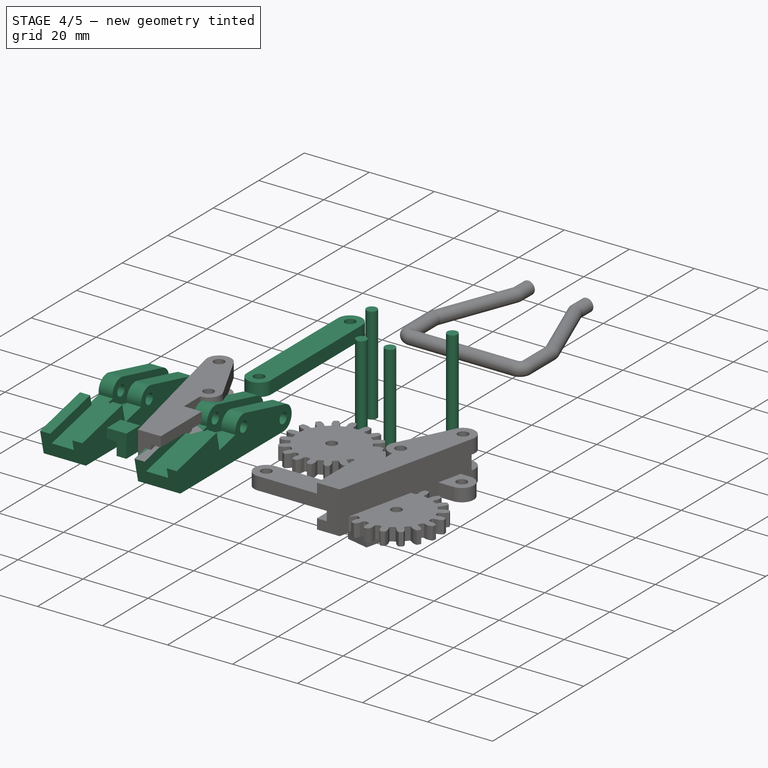
[diagram: stage 4 of 5 — iso view after this stage's code; geometry added in this stage tinted green]
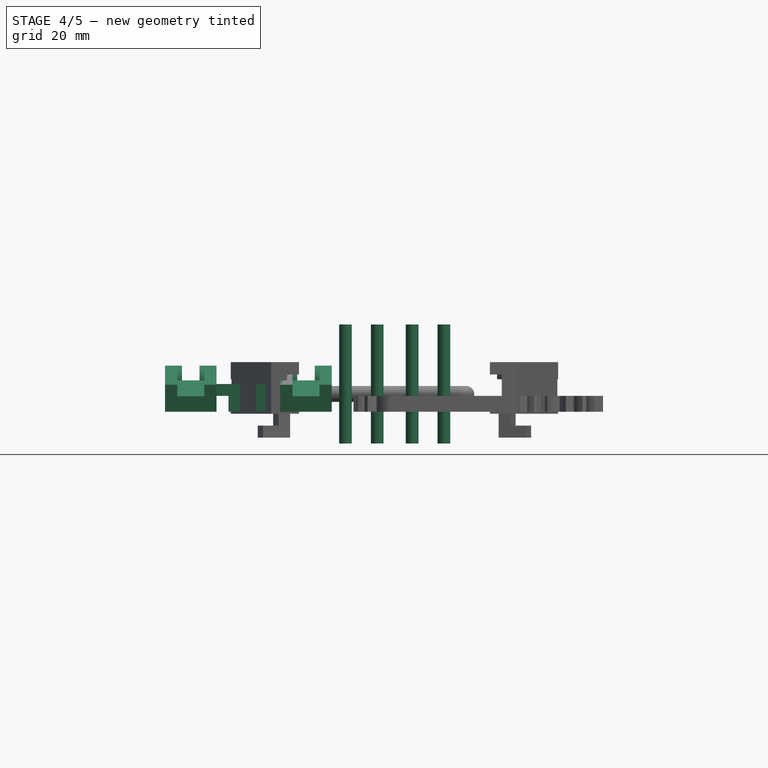
[diagram: stage 4 of 5 — front view after this stage's code; geometry added in this stage tinted green]
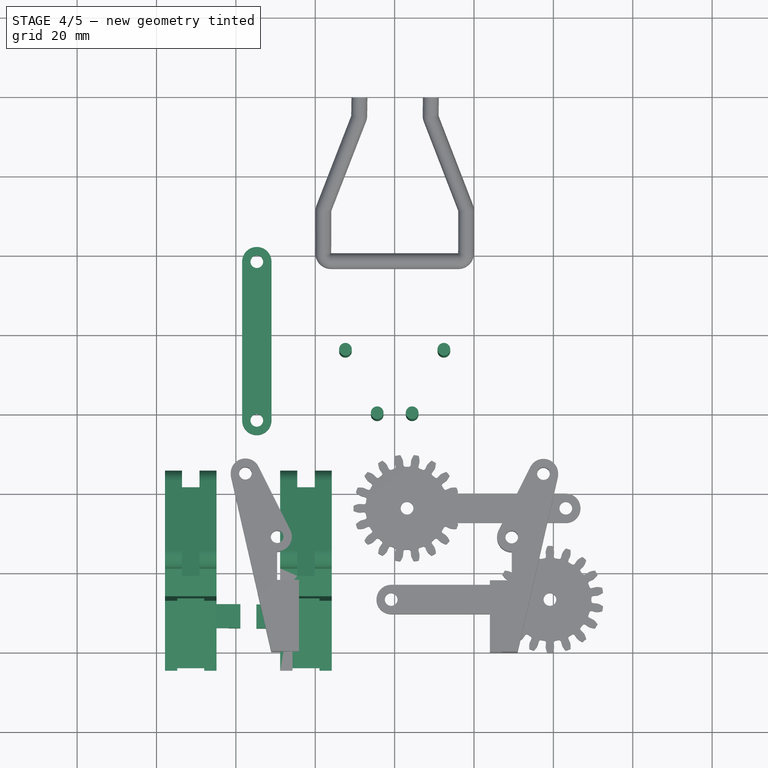
[diagram: stage 4 of 5 — top view after this stage's code; geometry added in this stage tinted green]
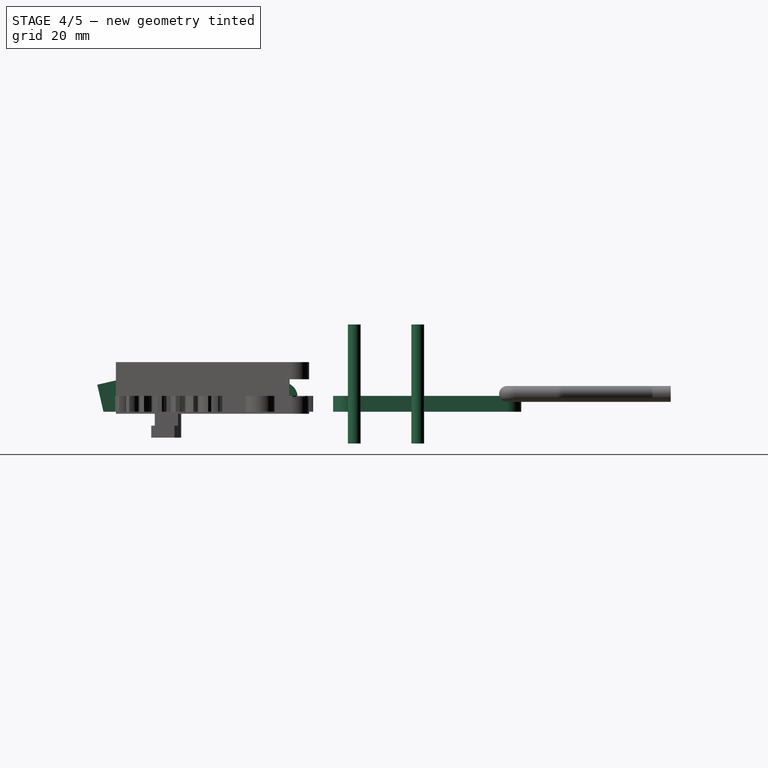
[diagram: stage 4 of 5 — right view after this stage's code; geometry added in this stage tinted green]
FEATURE [Sketcher::SketchObject] Sketch002  label="link-body-sketch"
  sketch-geometry (4):
    g0: ArcOfCircle CenterX=0 CenterY=0 CenterZ=0 NormalX=0 NormalY=0 NormalZ=1 Radius=3.7 StartAngle=1.5708 EndAngle=4.71239
    g1: ArcOfCircle CenterX=40 CenterY=0 CenterZ=0 NormalX=0 NormalY=0 NormalZ=1 Radius=3.7 StartAngle=4.71239 EndAngle=7.85398
    g2: LineSegment StartX=0 StartY=-3.7 StartZ=0 EndX=40 EndY=-3.7 EndZ=0
    g3: LineSegment StartX=0 StartY=3.7 StartZ=0 EndX=40 EndY=3.7 EndZ=0
  constraints (9):
    c: Tangent(g0,g3) = 1.5708
    c: Tangent(g0,g2) = -1.5708
    c: Tangent(g2,g1) = -1.5708
    c: Tangent(g3,g1) = 1.5708
    c: Horizontal(g2)
    c: Equal(g0,g1)
    c: Coincident(g0,g-1)
    c: Radius(g0) = 3.7
    c: DistanceX(g2) = 40
FEATURE [PartDesign::Pad] Pad002  label="link-body"
  Length = 4
  Length2 = 100
  Sketch = -> Sketch002
  Type = 0
FEATURE [Part::FeaturePython] Clone005  label="link-drill-1"  # Draft clone (typed FeaturePython)
  Objects = -> [Cylinder]
  Placement = pos=(0,0,-8) rot=(0,0,1;0rad)
  Scale = (1,1,1)
FEATURE [Part::MultiFuse] Fusion001
  Shapes = -> [Clone005,Clone006]
FEATURE [Part::Cut] Cut001  label="link-master"
  Base = -> Pad002
  Tool = -> Fusion001
FEATURE [Part::FeaturePython] Clone019  label="base-drill-1"  # Draft clone (typed FeaturePython)
  Objects = -> [Cylinder001]
  Placement = pos=(-12.4012,16,-8) rot=(0,0,1;0rad)
  Scale = (1,1,1)
FEATURE [Part::FeaturePython] Clone020  label="base-drill-2"  # Draft clone (typed FeaturePython)
  Objects = -> [Cylinder001]
  Placement = pos=(-4.40118,-8.7e-11,-8) rot=(0,0,1;0rad)
  Scale = (1,1,1)
FEATURE [Part::FeaturePython] Clone021  label="base-drill-3"  # Draft clone (typed FeaturePython)
  Objects = -> [Cylinder001]
  Placement = pos=(12.4011,16,-8) rot=(0,0,1;0rad)
  Scale = (1,1,1)
FEATURE [Part::FeaturePython] Clone022  label="base-drill-4"  # Draft clone (typed FeaturePython)
  Objects = -> [Cylinder001]
  Placement = pos=(4.40118,-5.3e-11,-8) rot=(0,0,1;0rad)
  Scale = (1,1,1)
FEATURE [Part::MultiFuse] Fusion007  label="base-drills"
  Shapes = -> [Clone019,Clone021,Clone020,Clone022]
FEATURE [App::DocumentObjectGroup] Group  label="claw-finger-src"
  Group = -> [Pad001,Cylinder,Cut,Cylinder001,Pocket001,Pocket003,Box,Pad007,Fusion010,Fusion011]
FEATURE [Part::FeaturePython] Clone033  label="Clone of left-finger-master001"  # Draft clone (typed FeaturePython)
  Objects = -> [Fusion010]
  Placement = pos=(-44.8796,-64.7457,6.82291) rot=(0.111764,-0.98743,-0.111764;1.58345rad)
  Scale = (1,1,1)
FEATURE [Part::FeaturePython] Clone034  label="Clone of right-finger-master001"  # Draft clone (typed FeaturePython)
  Objects = -> [Fusion011]
  Placement = pos=(-28.8479,-63.1247,-0.245901) rot=(0.111764,0.98743,0.111764;1.58345rad)
  Scale = (1,1,1)
FEATURE [Part::FeaturePython] Clone035  label="link-3"  # Draft clone (typed FeaturePython)
  Objects = -> [Cut001]
  Placement = pos=(-34.7333,38.3969,0) rot=(0,0,-1;1.5708rad)
  Scale = (1,1,1)
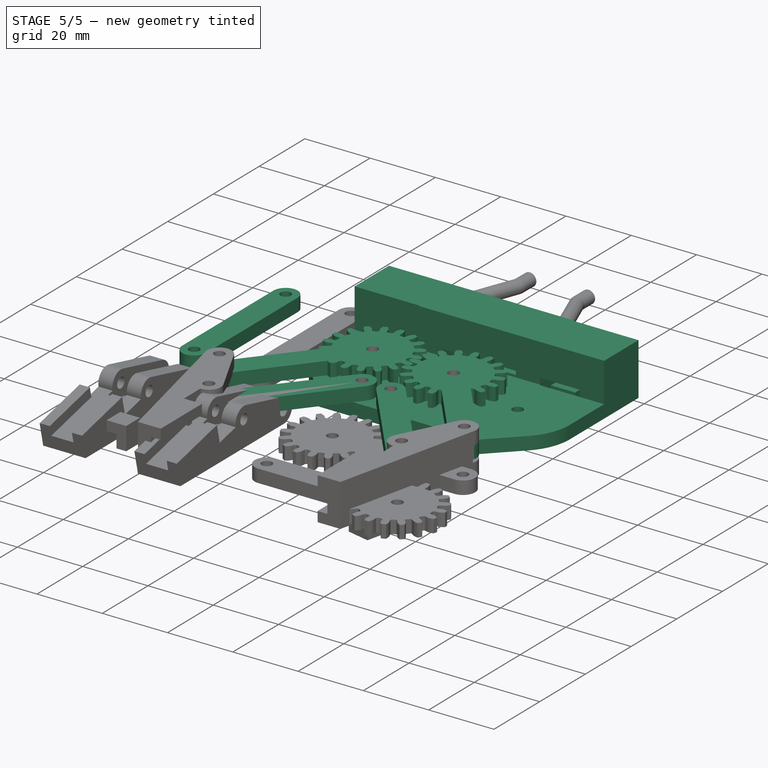
[diagram: stage 5 of 5 — iso view after this stage's code; geometry added in this stage tinted green]
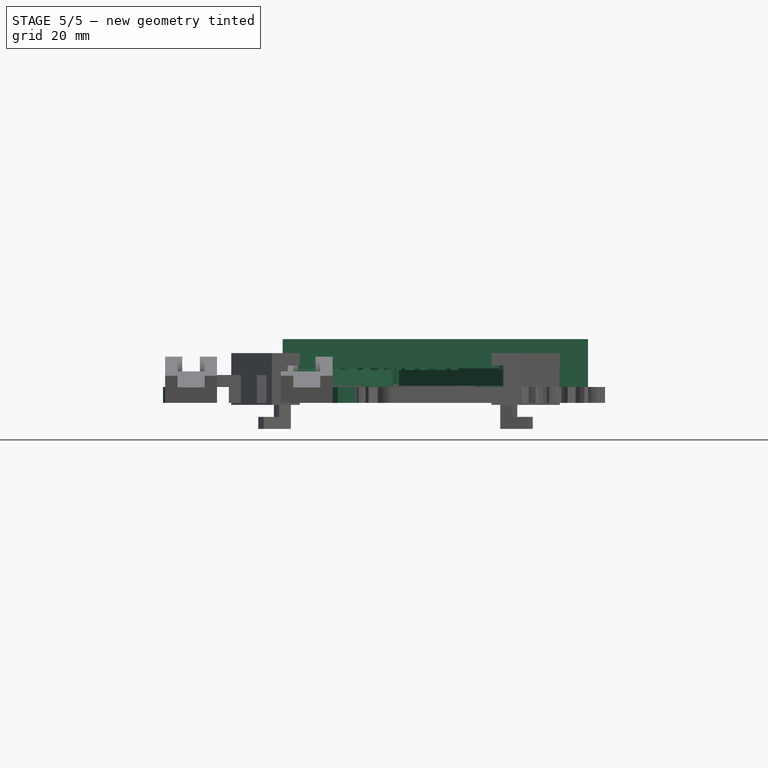
[diagram: stage 5 of 5 — front view after this stage's code; geometry added in this stage tinted green]
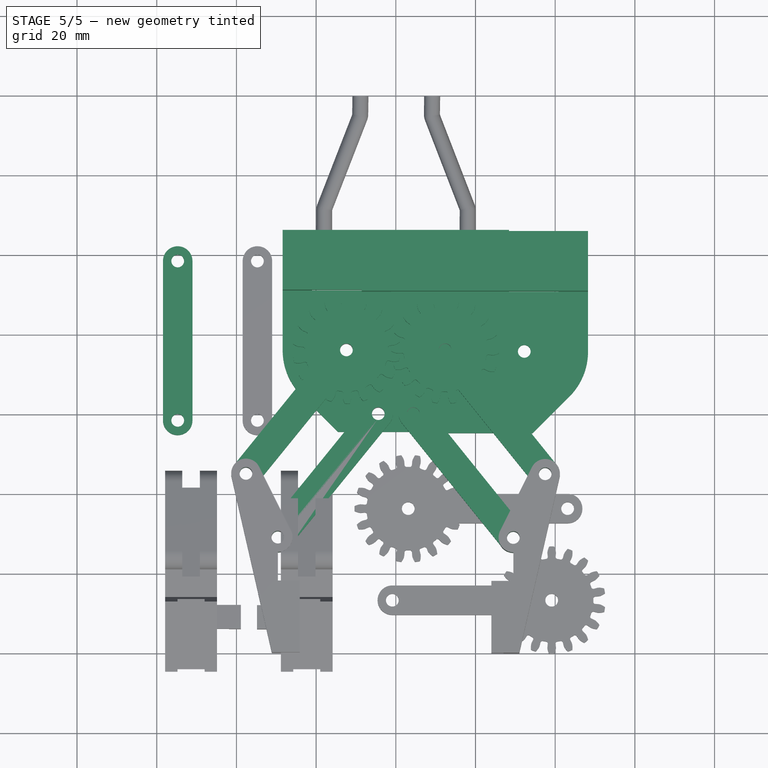
[diagram: stage 5 of 5 — top view after this stage's code; geometry added in this stage tinted green]
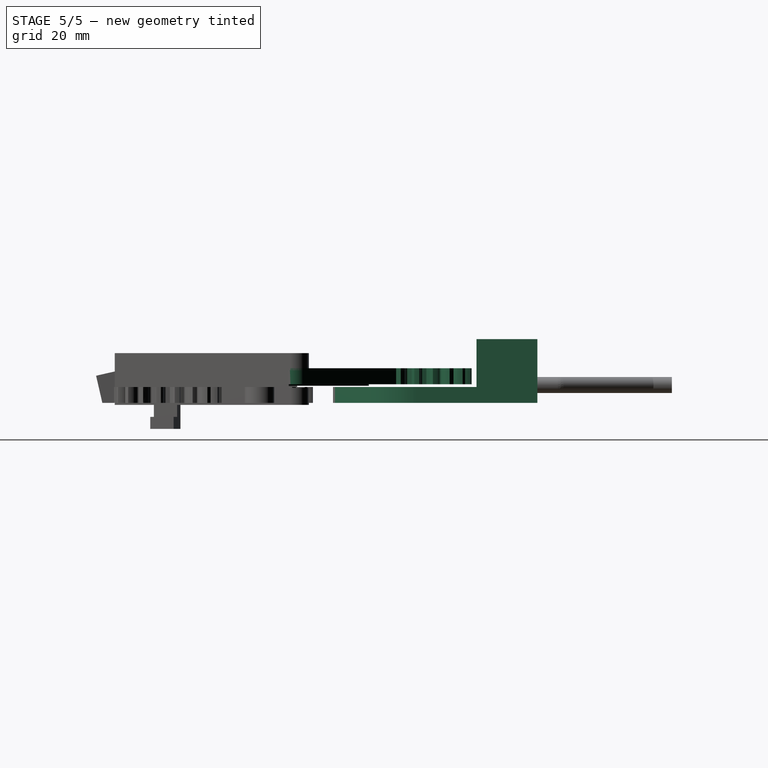
[diagram: stage 5 of 5 — right view after this stage's code; geometry added in this stage tinted green]
FEATURE [App::DocumentObjectGroup] Group002  label="link-src"
  Group = -> [Cut001]
FEATURE [Part::FeaturePython] Clone007  label="link-1"  # Draft clone (typed FeaturePython)
  Objects = -> [Cut001]
  Placement = pos=(-29.6105,-31.0563,4.3) rot=(0,0,1;0.888944rad)
  Scale = (1,1,1)
FEATURE [Part::FeaturePython] Clone008  label="link2"  # Draft clone (typed FeaturePython)
  Objects = -> [Cut001]
  Placement = pos=(-54.7333,38.3969,0) rot=(0,0,-1;1.5708rad)
  Scale = (1,1,1)
FEATURE [Part::FeaturePython] Clone012  label="left-gear-link"  # Draft clone (typed FeaturePython)
  Objects = -> [Cut002]
  Placement = pos=(-12.4012,16,4.7) rot=(0,0,1;4.03054rad)
  Scale = (1,1,1)
FEATURE [App::DocumentObjectGroup] Group003  label="gear-src"
  Group = -> [Cut002,Cut003]
FEATURE [Part::FeaturePython] Clone015  label="right-gear001"  # Draft clone (typed FeaturePython)
  Objects = -> [Cut003]
  Placement = pos=(12.4011,16,4.7) rot=(0,0,-1;0.892743rad)
  Scale = (1,1,1)
FEATURE [Part::FeaturePython] Clone017  label="right-link"  # Draft clone (typed FeaturePython)
  Objects = -> [Cut001]
  Placement = pos=(4.39353,-0.0061237,4.3) rot=(0,0,-1;0.8925rad)
  Scale = (1,1,1)
FEATURE [Sketcher::SketchObject] Sketch005  label="base-sketch"
  sketch-geometry (12):
    g0: LineSegment StartX=14.5274 StartY=-4.5 StartZ=0 EndX=-14.5274 EndY=-4.5 EndZ=0
    g1: LineSegment StartX=-14.5274 StartY=-4.5 StartZ=0 EndX=-23.7137 EndY=4.68633 EndZ=0
    g2: LineSegment StartX=14.5274 StartY=-4.5 StartZ=0 EndX=23.7137 EndY=4.68633 EndZ=0
    g3: LineSegment [constr] StartX=-12.4 StartY=16 StartZ=0 EndX=12.4 EndY=16 EndZ=0
    g4: LineSegment [constr] StartX=-12.4 StartY=16 StartZ=0 EndX=-4.4 EndY=0 EndZ=0
    g5: LineSegment [constr] StartX=-4.4 StartY=0 StartZ=0 EndX=4.4 EndY=0 EndZ=0
    g6: LineSegment [constr] StartX=4.4 StartY=0 StartZ=0 EndX=12.4 EndY=16 EndZ=0
    g7: ArcOfCircle CenterX=-12.4 CenterY=16 CenterZ=0 NormalX=0 NormalY=0 NormalZ=1 Radius=16 StartAngle=3.14159 EndAngle=3.92699
    g8: LineSegment StartX=-28.4 StartY=16 StartZ=0 EndX=-28.4 EndY=46 EndZ=0
    g9: LineSegment StartX=-28.4 StartY=46 StartZ=0 EndX=28.4 EndY=46 EndZ=0
    g10: ArcOfCircle CenterX=12.4 CenterY=16 CenterZ=0 NormalX=0 NormalY=0 NormalZ=1 Radius=16 StartAngle=5.49779 EndAngle=6.28319
    g11: LineSegment StartX=28.4 StartY=46 StartZ=0 EndX=28.4 EndY=16 EndZ=0
  constraints (35):
    c: Horizontal(g0)
    c: Coincident(g0,g1)
    c: Coincident(g0,g2)
    c: Coincident(g4,g5)
    c: Horizontal(g5)
    c: Coincident(g5,g6)
    c: Coincident(g6,g3)
    c: Coincident(g4,g3)
    c: PointOnObject(g5,g-1)
    c: Symmetric(g4,g5,g-2)
    c: Symmetric(g3,g3,g-2)
    c: DistanceX(g5) = 8.8
    c: DistanceX(g3) = 24.8
    c: DistanceY(g3,g5) = -16
    c: Symmetric(g0,g0,g-2)
    c: DistanceY(g5,g0) = -4.5
    c: Angle(g-1,g1) = 2.35619
    c: Symmetric(g1,g2,g-2)
    c: Coincident(g7,g3)
    c: Coincident(g7,g1)
    c: Radius(g7) = 16
    c: PointOnObject(g7,g3)
    c: Vertical(g8)
    c: Coincident(g8,g7)
    c: DistanceY(g8) = 30
    c: Horizontal(g9)
    c: Coincident(g9,g8)
    c: Coincident(g10,g3)
    c: Coincident(g10,g2)
    c: Tangent(g7,g1)
    c: Symmetric(g10,g7,g-2)
    c: Symmetric(g8,g9,g-2)
    c: Vertical(g11)
    c: Coincident(g11,g10)
    c: Coincident(g11,g9)
FEATURE [PartDesign::Pad] Pad005  label="base-body"
  Length = 4
  Length2 = 100
  Sketch = -> Sketch005
  Type = 0
FEATURE [Part::Cut] Cut004  label="base"
  Base = -> Pad005
  Tool = -> Fusion007
FEATURE [Sketcher::SketchObject] Sketch009
  Placement = pos=(0,0,0) rot=(1,0,0;1.5708rad)
  Support = -> Box [Face3]
  sketch-geometry (4):
    g0: LineSegment StartX=0 StartY=0 StartZ=0 EndX=2 EndY=0 EndZ=0
    g1: LineSegment StartX=2 StartY=0 StartZ=0 EndX=2 EndY=2 EndZ=0
    g2: LineSegment StartX=2 StartY=2 StartZ=0 EndX=0 EndY=2 EndZ=0
    g3: LineSegment StartX=0 StartY=2 StartZ=0 EndX=0 EndY=0 EndZ=0
  constraints (11):
    c: Coincident(g0,g1)
    c: Coincident(g1,g2)
    c: Coincident(g2,g3)
    c: Coincident(g3,g0)
    c: Horizontal(g0)
    c: Horizontal(g2)
    c: Vertical(g1)
    c: Vertical(g3)
    c: Coincident(g0,g-1)
    c: DistanceY(g1) = 2
    c: Equal(g2,g1)
FEATURE [PartDesign::Pocket] Pocket003  label="hook-src"
  Length = 5
  Sketch = -> Sketch009
  Type = 1
FEATURE [Sketcher::SketchObject] Sketch010
  ExternalGeometry = -> [Cut004]
  Placement = pos=(0,0,4) rot=(0,0,1;0rad)
  Support = -> Cut004 [Face5]
  sketch-geometry (4):
    g0: LineSegment StartX=-28.4 StartY=46 StartZ=0 EndX=28.4 EndY=46 EndZ=0
    g1: LineSegment StartX=28.4 StartY=46 StartZ=0 EndX=28.4 EndY=31 EndZ=0
    g2: LineSegment StartX=28.4 StartY=31 StartZ=0 EndX=-28.4 EndY=31 EndZ=0
    g3: LineSegment StartX=-28.4 StartY=31 StartZ=0 EndX=-28.4 EndY=46 EndZ=0
  constraints (11):
    c: Coincident(g0,g1)
    c: Coincident(g1,g2)
    c: Coincident(g2,g3)
    c: Coincident(g3,g0)
    c: Horizontal(g0)
    c: Horizontal(g2)
    c: Vertical(g1)
    c: Vertical(g3)
    c: Coincident(g0,g-4)
    c: Coincident(g0,g-3)
    c: DistanceY(g1) = -15
FEATURE [PartDesign::Pad] Pad
  Length = 12
  Length2 = 100
  Sketch = -> Sketch010
  Type = 0
FEATURE [Sketcher::SketchObject] Sketch011
  ExternalGeometry = -> [Pad]
  Placement = pos=(0,0,0) rot=(1,0,0;3.14159rad)
  Support = -> Pad [Face1]
  sketch-geometry (8):
    g0: LineSegment StartX=-16 StartY=-36 StartZ=0 EndX=-16 EndY=-46 EndZ=0
    g1: LineSegment StartX=-16 StartY=-46 StartZ=0 EndX=-21 EndY=-46 EndZ=0
    g2: LineSegment StartX=-21 StartY=-46 StartZ=0 EndX=-21 EndY=-31 EndZ=0
    g3: LineSegment StartX=21 StartY=-31 StartZ=0 EndX=21 EndY=-46 EndZ=0
    g4: LineSegment StartX=21 StartY=-46 StartZ=0 EndX=16 EndY=-46 EndZ=0
    g5: LineSegment StartX=16 StartY=-46 StartZ=0 EndX=16 EndY=-36 EndZ=0
    g6: LineSegment StartX=-21 StartY=-31 StartZ=0 EndX=21 EndY=-31 EndZ=0
    g7: LineSegment StartX=-16 StartY=-36 StartZ=0 EndX=16 EndY=-36 EndZ=0
  constraints (25):
    c: Coincident(g0,g1)
    c: Coincident(g1,g2)
    c: Horizontal(g1)
    c: Vertical(g0)
    c: Vertical(g2)
    c: PointOnObject(g0,g-3)
    c: Coincident(g3,g4)
    c: Coincident(g4,g5)
    c: Horizontal(g4)
    c: Vertical(g3)
    c: Vertical(g5)
    c: Equal(g5,g0)
    c: Symmetric(g4,g0,g-2)
    c: Symmetric(g3,g1,g-2)
    c: DistanceX(g4,g3) = 5
    c: DistanceX(g0,g4) = 32
    c: PointOnObject(g2,g-4)
    c: PointOnObject(g3,g-4)
    c: Horizontal(g6)
    c: Coincident(g6,g2)
    c: Coincident(g6,g3)
    c: Horizontal(g7)
    c: Coincident(g7,g0)
    c: Coincident(g7,g5)
    c: DistanceY(g0,g2) = 5
FEATURE [PartDesign::Pocket] Pocket004
  Length = 6
  Sketch = -> Sketch011
  Type = 0
FEATURE [Sketcher::SketchObject] Sketch012
  ExternalGeometry = -> [Pocket004]
  Placement = pos=(0,36,0) rot=(1,0,0;1.5708rad)
  Support = -> Pocket004 [Face24]
  sketch-geometry (4):
    g0: LineSegment StartX=-16 StartY=6 StartZ=0 EndX=16 EndY=6 EndZ=0
    g1: LineSegment StartX=16 StartY=6 StartZ=0 EndX=16 EndY=2 EndZ=0
    g2: LineSegment StartX=16 StartY=2 StartZ=0 EndX=-16 EndY=2 EndZ=0
    g3: LineSegment StartX=-16 StartY=2 StartZ=0 EndX=-16 EndY=6 EndZ=0
  constraints (11):
    c: Coincident(g0,g1)
    c: Coincident(g1,g2)
    c: Coincident(g2,g3)
    c: Coincident(g3,g0)
    c: Horizontal(g0)
    c: Horizontal(g2)
    c: Vertical(g1)
    c: Vertical(g3)
    c: Coincident(g0,g-3)
    c: Coincident(g0,g-3)
    c: DistanceY(g3) = 4
FEATURE [PartDesign::Pocket] Pocket005  label="base2"
  Length = 6
  Sketch = -> Sketch012
  Type = 0
FEATURE [App::DocumentObjectGroup] Group004  label="base-src"
  Group = -> [Cut004,Pad,Pocket004,Pocket005]
FEATURE [Part::FeaturePython] Clone029  label="Clone-base2"  # Draft clone (typed FeaturePython)
  Objects = -> [Pocket005]
  Placement = pos=(19.8443,-0.292605,0) rot=(0,0,1;0rad)
  Scale = (1,1,1)
FEATURE [Part::FeaturePython] Clone030  label="Clone of base2"  # Draft clone (typed FeaturePython)
  Objects = -> [Pocket005]
  Scale = (1,1,1)
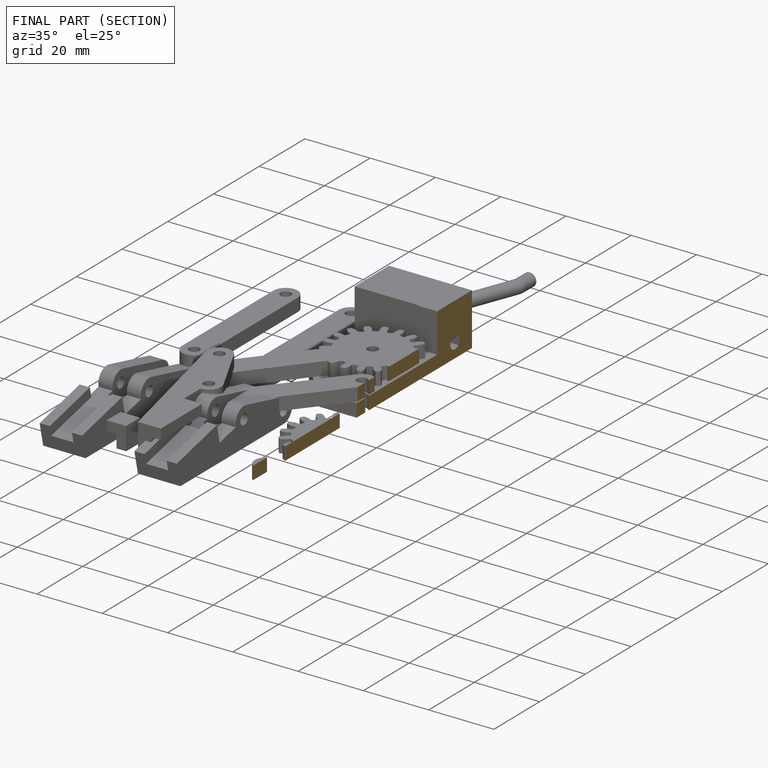
[diagram: finished part — half-section view (interior)]
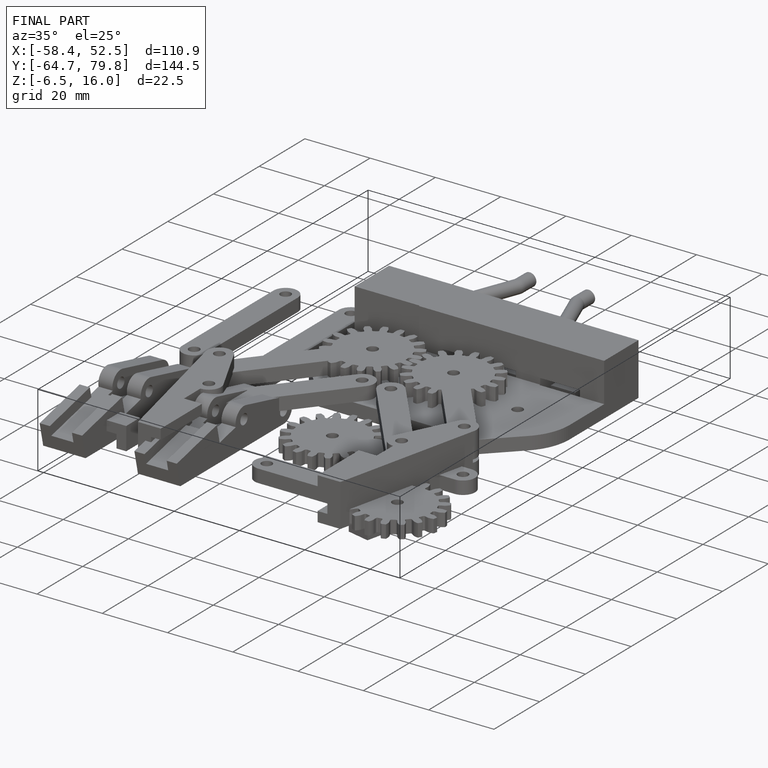
[diagram: finished part — iso view with bounding-box wireframe]
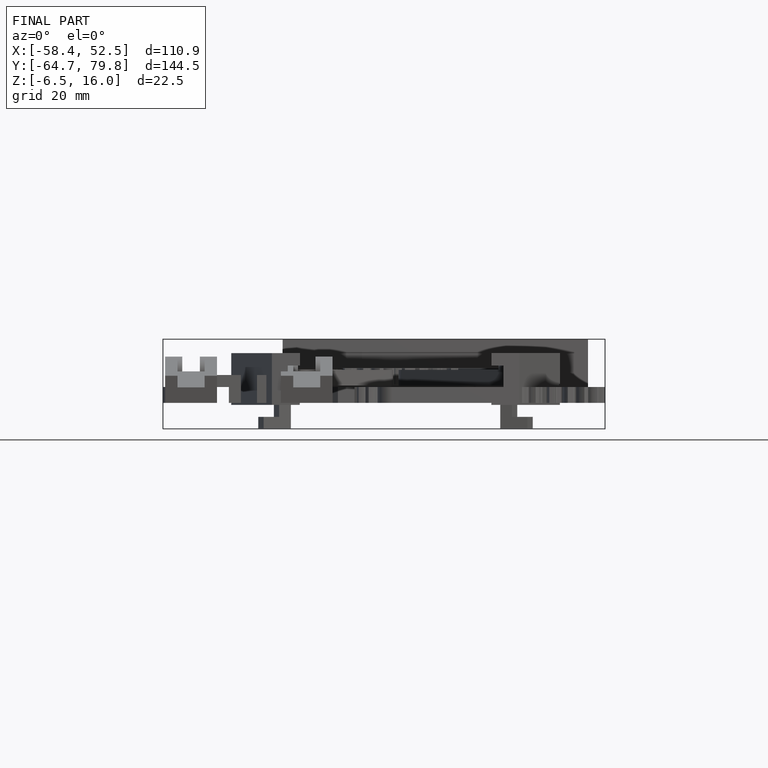
[diagram: finished part — front view with bounding-box wireframe]
